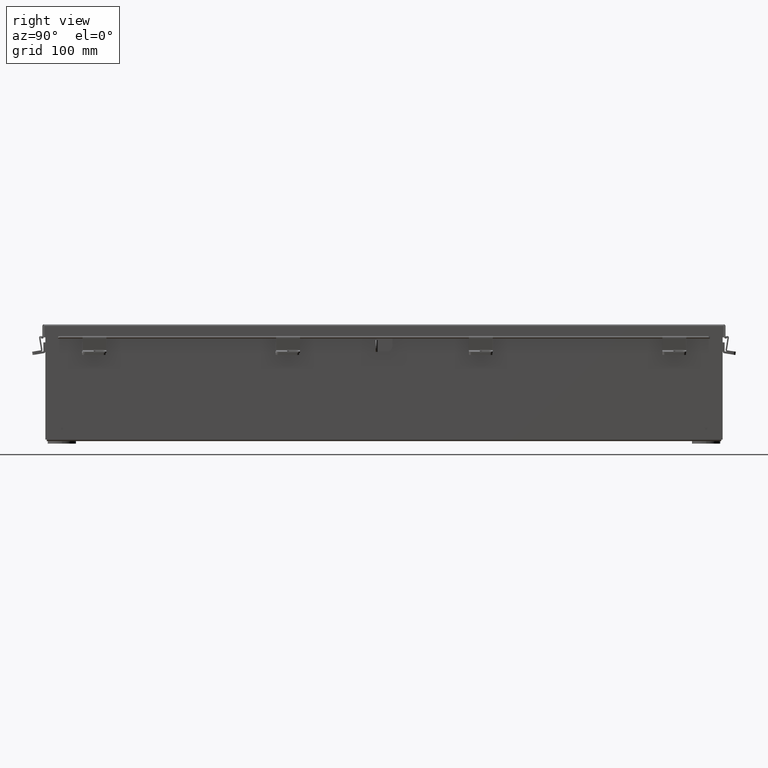
[diagram: clean part render]
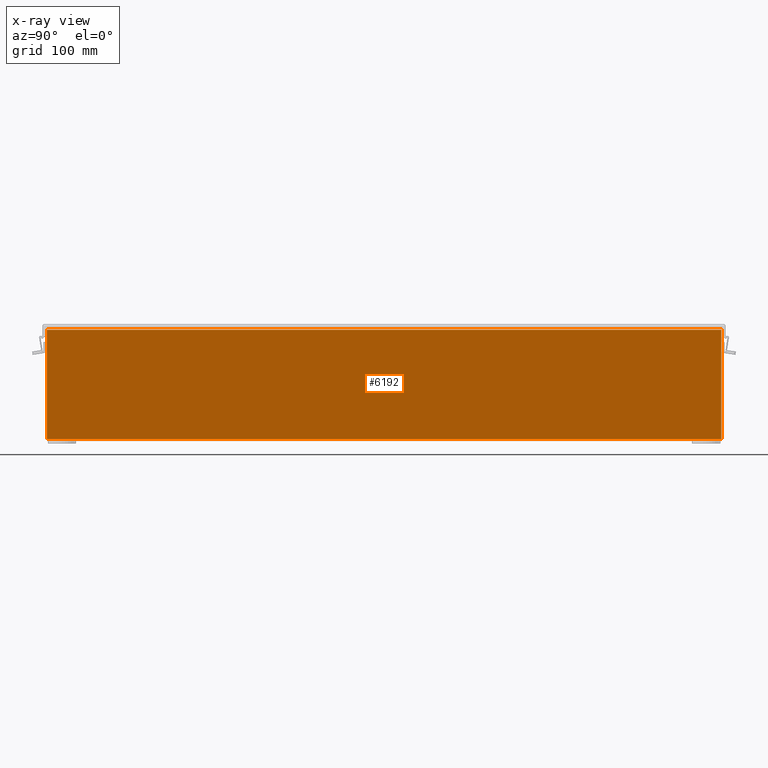
[diagram: x-ray — body ghosted, one internal face saturated and labeled with its STEP entity id]
A machine part, right view, then the same camera in x-ray: the body is ghosted and one INTERNAL B-rep face — a face not visible from any outside direction — is saturated and labeled: STEP entity #6192.
In plain terms, the highlighted planar face has unit normal (-1, 0, 0).
Its self-contained STEP definition (entity closure, byte-faithful):
#15 = CARTESIAN_POINT ( 'NONE',  ( 2.925300000000000500, 0.0000000000000000000, -1.036394832596379800E-014 ) ) ;
#643 = VECTOR ( 'NONE', #6135, 39.37007874015748100 ) ;
#2313 = DIRECTION ( 'NONE',  ( 3.455316574900958600E-015, 0.0000000000000000000, 1.000000000000000000 ) ) ;
#2344 = FACE_OUTER_BOUND ( 'NONE', #3190, .T. ) ;
#2575 = LINE ( 'NONE', #6203, #25535 ) ;
#3190 = EDGE_LOOP ( 'NONE', ( #28078, #8845, #18952, #26801 ) ) ;
#3791 = CARTESIAN_POINT ( 'NONE',  ( 2.925300000000020900, -17.92530000000000000, 5.837599999999999200 ) ) ;
#3812 = VECTOR ( 'NONE', #27938, 39.37007874015748100 ) ;
#3851 = CARTESIAN_POINT ( 'NONE',  ( 2.925300000000020900, 17.92530000000000000, 5.837599999999999200 ) ) ;
#4527 = PLANE ( 'NONE',  #13824 ) ;
#6135 = DIRECTION ( 'NONE',  ( -0.0000000000000000000, -1.000000000000000000, -0.0000000000000000000 ) ) ;
#6192 = ADVANCED_FACE ( 'NONE', ( #2344 ), #4527, .T. ) ;
#6203 = CARTESIAN_POINT ( 'NONE',  ( 2.925300000000000500, -17.92530000000000000, 0.01300000000000011600 ) ) ;
#6532 = CARTESIAN_POINT ( 'NONE',  ( 2.925300000000020900, 17.92530000000000000, 5.850600000000000000 ) ) ;
#7449 = LINE ( 'NONE', #3851, #643 ) ;
#8203 = CARTESIAN_POINT ( 'NONE',  ( 2.925300000000000500, -17.92530000000000000, 0.01299999999999972400 ) ) ;
#8246 = VERTEX_POINT ( 'NONE', #28391 ) ;
#8275 = VECTOR ( 'NONE', #24902, 39.37007874015748100 ) ;
#8351 = EDGE_CURVE ( 'NONE', #15288, #27154, #2575, .T. ) ;
#8425 = DIRECTION ( 'NONE',  ( 2.106385868603161400E-031, 1.000000000000000000, 6.096072018129156600E-017 ) ) ;
#8845 = ORIENTED_EDGE ( 'NONE', *, *, #23099, .F. ) ;
#9553 = CARTESIAN_POINT ( 'NONE',  ( 2.925300000000000500, -17.92530000000000000, 0.0000000000000000000 ) ) ;
#9893 = LINE ( 'NONE', #9553, #3812 ) ;
#12103 = CARTESIAN_POINT ( 'NONE',  ( 2.925300000000000500, 17.92530000000000000, 0.01300000000000267600 ) ) ;
#13824 = AXIS2_PLACEMENT_3D ( 'NONE', #15, #16039, #2313 ) ;
#14371 = LINE ( 'NONE', #6532, #8275 ) ;
#15288 = VERTEX_POINT ( 'NONE', #8203 ) ;
#16039 = DIRECTION ( 'NONE',  ( -1.000000000000000000, 0.0000000000000000000, 3.455316574900958600E-015 ) ) ;
#17002 = EDGE_CURVE ( 'NONE', #17953, #15288, #9893, .T. ) ;
#17953 = VERTEX_POINT ( 'NONE', #3791 ) ;
#18952 = ORIENTED_EDGE ( 'NONE', *, *, #21160, .F. ) ;
#21160 = EDGE_CURVE ( 'NONE', #27154, #8246, #14371, .T. ) ;
#23099 = EDGE_CURVE ( 'NONE', #8246, #17953, #7449, .T. ) ;
#24902 = DIRECTION ( 'NONE',  ( 3.455316574900958600E-015, -0.0000000000000000000, 1.000000000000000000 ) ) ;
#25535 = VECTOR ( 'NONE', #8425, 39.37007874015748100 ) ;
#26801 = ORIENTED_EDGE ( 'NONE', *, *, #8351, .F. ) ;
#27154 = VERTEX_POINT ( 'NONE', #12103 ) ;
#27938 = DIRECTION ( 'NONE',  ( -3.455316574900958600E-015, -0.0000000000000000000, -1.000000000000000000 ) ) ;
#28078 = ORIENTED_EDGE ( 'NONE', *, *, #17002, .F. ) ;
#28391 = CARTESIAN_POINT ( 'NONE',  ( 2.925300000000020900, 17.92530000000000000, 5.837599999999999200 ) ) ;